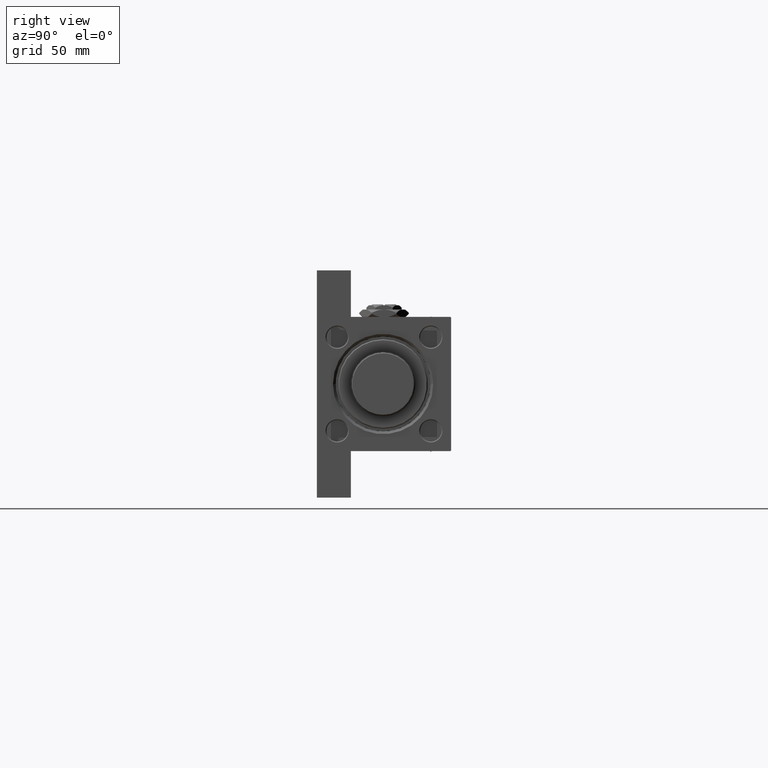
[diagram: clean part render]
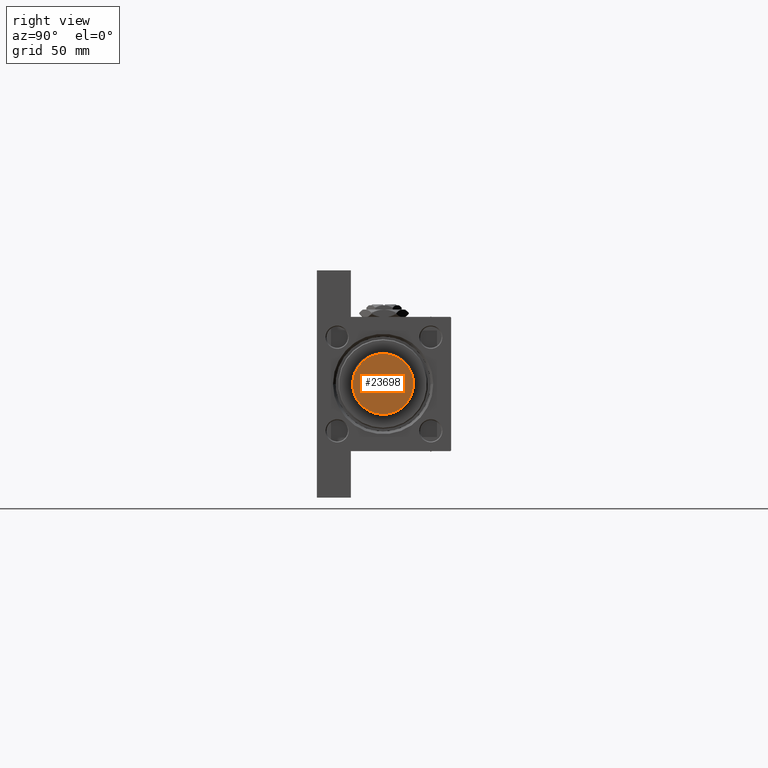
[diagram: same view with one face highlighted and labeled with its STEP entity id]
A machine part, right view. The second image highlights one B-rep face of the part: STEP entity #23698.
In plain terms, the highlighted planar face has unit normal (1, 0, 0).
Its self-contained STEP definition (entity closure, byte-faithful):
#6316 = DIRECTION ( 'NONE',  ( 0.000000000000000000, 0.000000000000000000, 1.000000000000000000 ) ) ;
#7139 = ORIENTED_EDGE ( 'NONE', *, *, #16273, .T. ) ;
#7572 = FACE_OUTER_BOUND ( 'NONE', #30278, .T. ) ;
#7619 = AXIS2_PLACEMENT_3D ( 'NONE', #45080, #6316, #29125 ) ;
#9891 = DIRECTION ( 'NONE',  ( 0.000000000000000000, 0.000000000000000000, 1.000000000000000000 ) ) ;
#11510 = CARTESIAN_POINT ( 'NONE',  ( 17.00000000000000355, 0.000000000000000000, 0.000000000000000000 ) ) ;
#12217 = VERTEX_POINT ( 'NONE', #32646 ) ;
#15951 = DIRECTION ( 'NONE',  ( 0.000000000000000000, 0.000000000000000000, 1.000000000000000000 ) ) ;
#16193 = PLANE ( 'NONE',  #48068 ) ;
#16273 = EDGE_CURVE ( 'NONE', #17774, #12217, #29479, .T. ) ;
#17774 = VERTEX_POINT ( 'NONE', #11510 ) ;
#21364 = AXIS2_PLACEMENT_3D ( 'NONE', #29168, #9891, #35111 ) ;
#23043 = CARTESIAN_POINT ( 'NONE',  ( 0.000000000000000000, 0.000000000000000000, 0.000000000000000000 ) ) ;
#23698 = ADVANCED_FACE ( 'NONE', ( #7572 ), #16193, .T. ) ;
#23897 = ORIENTED_EDGE ( 'NONE', *, *, #38870, .T. ) ;
#29125 = DIRECTION ( 'NONE',  ( 1.000000000000000000, 0.000000000000000000, 0.000000000000000000 ) ) ;
#29168 = CARTESIAN_POINT ( 'NONE',  ( 0.000000000000000000, 0.000000000000000000, 0.000000000000000000 ) ) ;
#29479 = CIRCLE ( 'NONE', #7619, 17.00000000000000355 ) ;
#30278 = EDGE_LOOP ( 'NONE', ( #7139, #23897 ) ) ;
#31387 = DIRECTION ( 'NONE',  ( 1.000000000000000000, 0.000000000000000000, -0.000000000000000000 ) ) ;
#32646 = CARTESIAN_POINT ( 'NONE',  ( -17.00000000000000355, 2.112515728529184856E-15, 0.000000000000000000 ) ) ;
#35111 = DIRECTION ( 'NONE',  ( 1.000000000000000000, 0.000000000000000000, 0.000000000000000000 ) ) ;
#38870 = EDGE_CURVE ( 'NONE', #12217, #17774, #40771, .T. ) ;
#40771 = CIRCLE ( 'NONE', #21364, 17.00000000000000355 ) ;
#45080 = CARTESIAN_POINT ( 'NONE',  ( 0.000000000000000000, 0.000000000000000000, 0.000000000000000000 ) ) ;
#48068 = AXIS2_PLACEMENT_3D ( 'NONE', #23043, #15951, #31387 ) ;